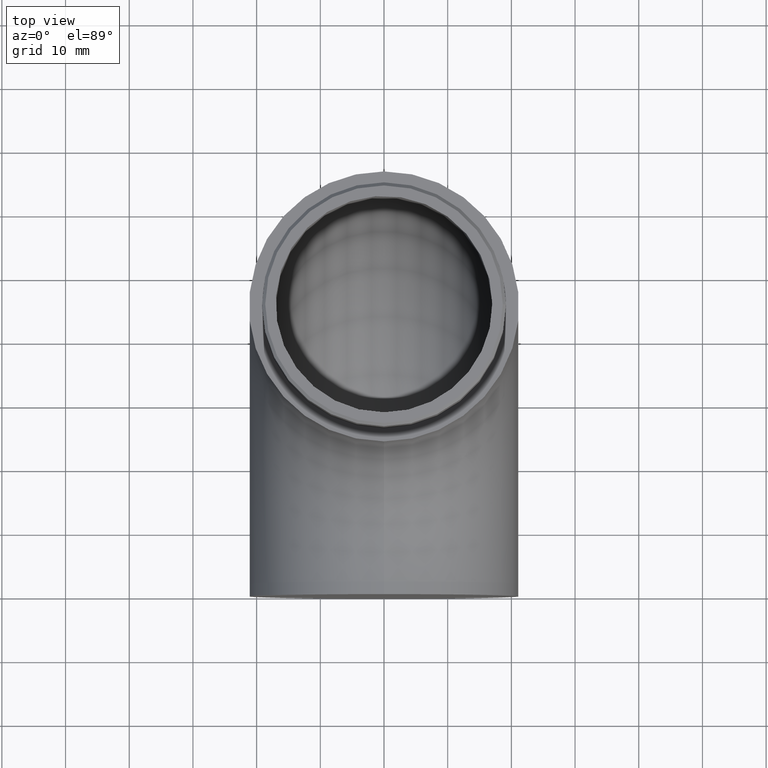
[diagram: clean part render]
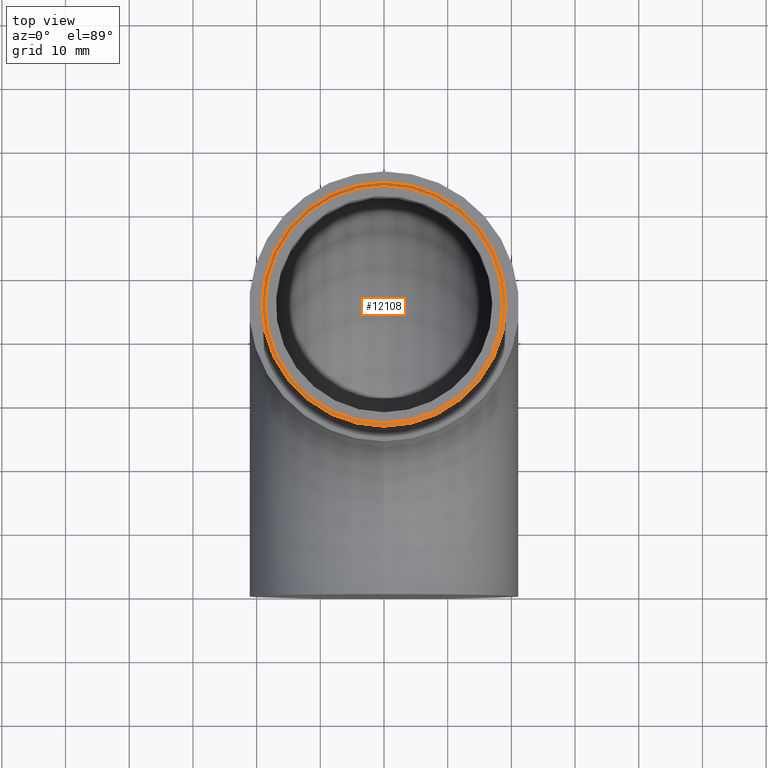
[diagram: same view with one face highlighted and labeled with its STEP entity id]
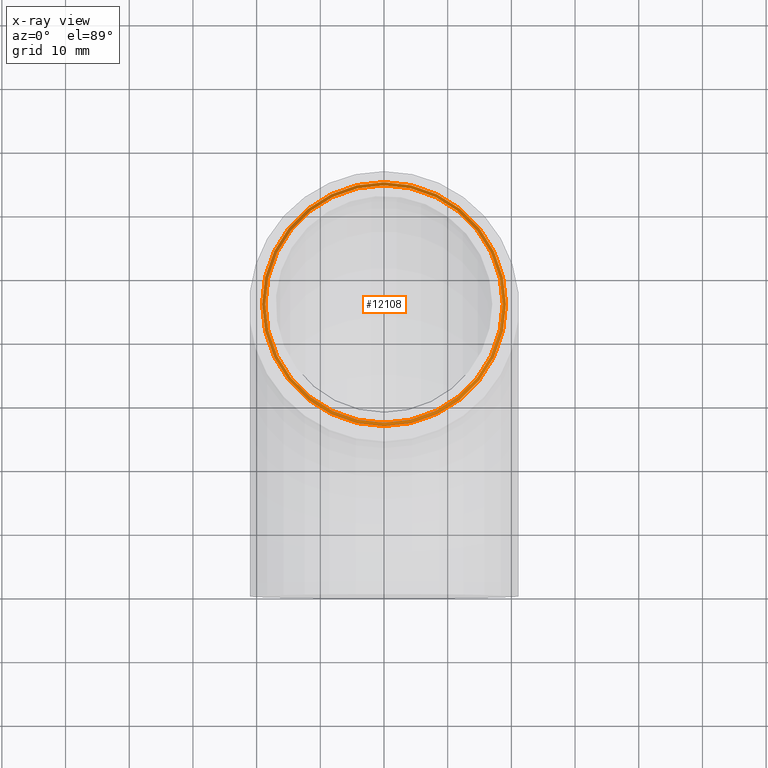
[diagram: x-ray of the same camera — body ghosted, the highlighted face saturated]
A machine part, top view. The second image highlights one B-rep face of the part: STEP entity #12108.
The next image is the same camera in x-ray: the body ghosted, the highlighted face saturated — about 0% of this face is hidden behind the body in this view.
In plain terms, the highlighted conical surface has half-angle 45 deg.
Its self-contained STEP definition (entity closure, byte-faithful):
#1680 = AXIS2_PLACEMENT_3D ( 'NONE', #7705, #3548, #6687 ) ;
#2064 = EDGE_CURVE ( 'NONE', #3972, #3972, #3199, .T. ) ;
#2384 = AXIS2_PLACEMENT_3D ( 'NONE', #4590, #6487, #2423 ) ;
#2423 = DIRECTION ( 'NONE',  ( 1.000000000000000000, 0.0000000000000000000, 0.0000000000000000000 ) ) ;
#2916 = DIRECTION ( 'NONE',  ( 0.0000000000000000000, 0.0000000000000000000, -1.000000000000000000 ) ) ;
#3199 = CIRCLE ( 'NONE', #1680, 18.65000000000001300 ) ;
#3464 = EDGE_LOOP ( 'NONE', ( #4876 ) ) ;
#3548 = DIRECTION ( 'NONE',  ( 0.0000000000000000000, 0.0000000000000000000, 1.000000000000000000 ) ) ;
#3869 = DIRECTION ( 'NONE',  ( -1.000000000000000000, 0.0000000000000000000, 0.0000000000000000000 ) ) ;
#3972 = VERTEX_POINT ( 'NONE', #7319 ) ;
#4590 = CARTESIAN_POINT ( 'NONE',  ( 0.0000000000000000000, 44.80000000000000400, 62.30000000000001800 ) ) ;
#4876 = ORIENTED_EDGE ( 'NONE', *, *, #2064, .F. ) ;
#4982 = CIRCLE ( 'NONE', #2384, 19.15000000000000200 ) ;
#5259 = ORIENTED_EDGE ( 'NONE', *, *, #11458, .F. ) ;
#6487 = DIRECTION ( 'NONE',  ( 0.0000000000000000000, 0.0000000000000000000, -1.000000000000000000 ) ) ;
#6687 = DIRECTION ( 'NONE',  ( 1.000000000000000000, 0.0000000000000000000, 0.0000000000000000000 ) ) ;
#6866 = EDGE_LOOP ( 'NONE', ( #5259 ) ) ;
#7283 = CONICAL_SURFACE ( 'NONE', #7736, 18.65000000000001300, 0.7853981633974447300 ) ;
#7319 = CARTESIAN_POINT ( 'NONE',  ( 18.65000000000001300, 44.80000000000000400, 62.80000000000001100 ) ) ;
#7705 = CARTESIAN_POINT ( 'NONE',  ( 0.0000000000000000000, 44.80000000000000400, 62.80000000000001100 ) ) ;
#7736 = AXIS2_PLACEMENT_3D ( 'NONE', #11166, #2916, #3869 ) ;
#8452 = CARTESIAN_POINT ( 'NONE',  ( 19.15000000000000200, 44.80000000000000400, 62.30000000000001800 ) ) ;
#10375 = FACE_OUTER_BOUND ( 'NONE', #6866, .T. ) ;
#10997 = VERTEX_POINT ( 'NONE', #8452 ) ;
#11166 = CARTESIAN_POINT ( 'NONE',  ( 0.0000000000000000000, 44.80000000000000400, 62.80000000000001100 ) ) ;
#11458 = EDGE_CURVE ( 'NONE', #10997, #10997, #4982, .T. ) ;
#12108 = ADVANCED_FACE ( 'NONE', ( #10375, #12150 ), #7283, .T. ) ;
#12150 = FACE_BOUND ( 'NONE', #3464, .T. ) ;